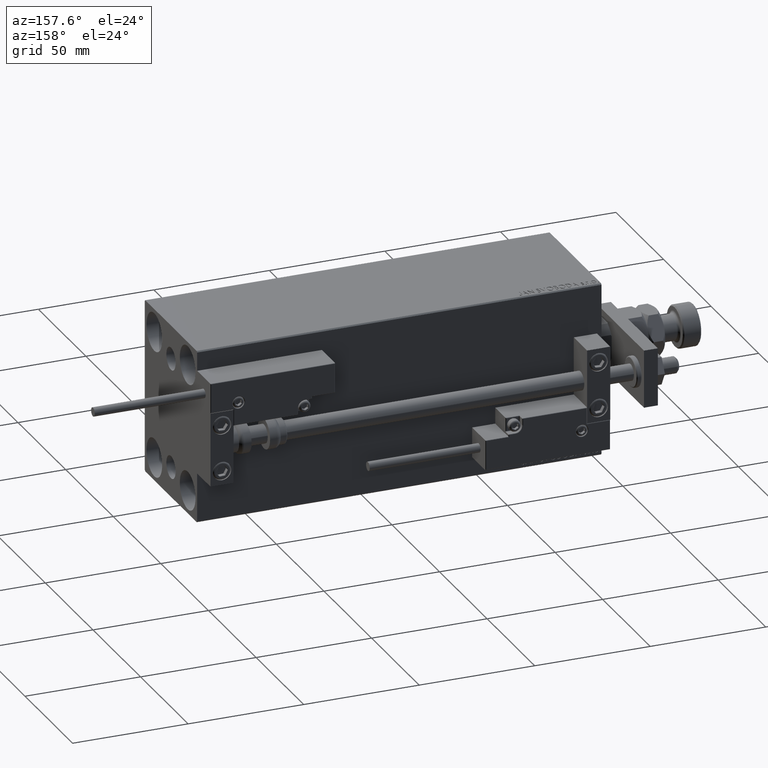
[diagram: clean part render]
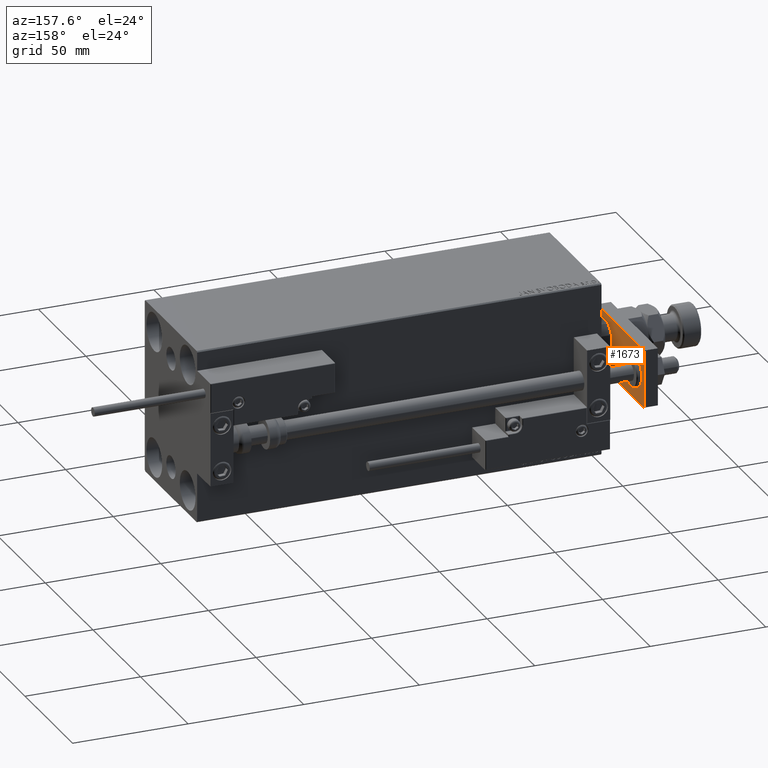
[diagram: same view with one face highlighted and labeled with its STEP entity id]
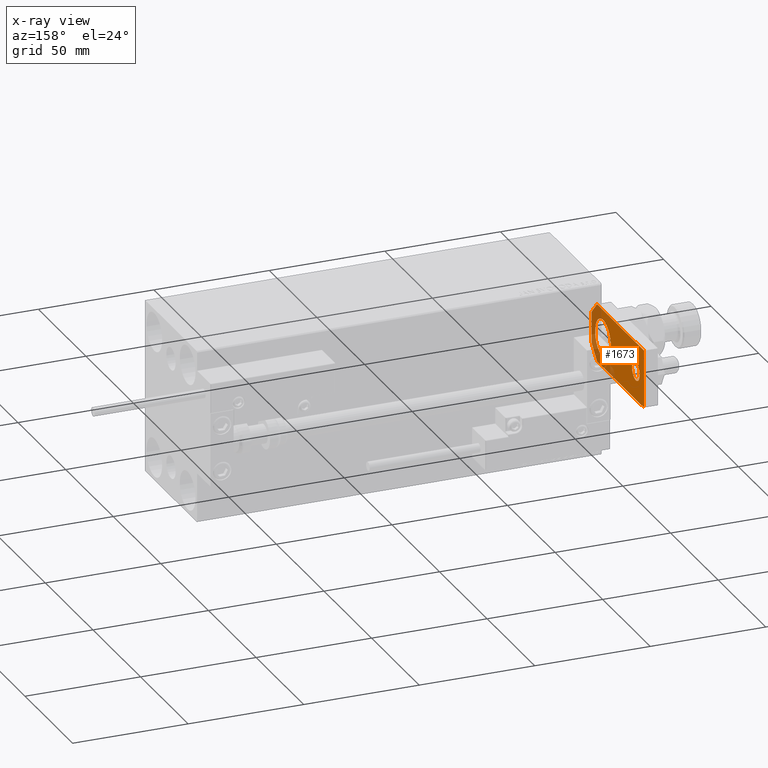
[diagram: x-ray of the same camera — body ghosted, the highlighted face saturated]
A machine part, auxiliary view. The second image highlights one B-rep face of the part: STEP entity #1673.
The next image is the same camera in x-ray: the body ghosted, the highlighted face saturated — about 20% of this face is hidden behind the body in this view.
In plain terms, the highlighted planar face has unit normal (-1, 0, 0).
Its self-contained STEP definition (entity closure, byte-faithful):
#44 = DIRECTION ( 'NONE',  ( 1.000000000000000000, 0.000000000000000000, 0.000000000000000000 ) ) ;
#57 = ORIENTED_EDGE ( 'NONE', *, *, #21189, .T. ) ;
#1673 = ADVANCED_FACE ( 'NONE', ( #33333, #21335, #6204 ), #5939, .F. ) ;
#1792 = VECTOR ( 'NONE', #21655, 1000.000000000000000 ) ;
#2223 = EDGE_CURVE ( 'NONE', #33489, #14913, #46762, .T. ) ;
#2452 = EDGE_CURVE ( 'NONE', #10854, #19344, #29493, .T. ) ;
#2599 = DIRECTION ( 'NONE',  ( 0.000000000000000000, 0.000000000000000000, 1.000000000000000000 ) ) ;
#2680 = VECTOR ( 'NONE', #9317, 1000.000000000000114 ) ;
#2702 = EDGE_CURVE ( 'NONE', #34551, #40366, #42606, .T. ) ;
#2821 = ORIENTED_EDGE ( 'NONE', *, *, #27479, .T. ) ;
#3822 = LINE ( 'NONE', #19966, #39175 ) ;
#5893 = VERTEX_POINT ( 'NONE', #51142 ) ;
#5910 = AXIS2_PLACEMENT_3D ( 'NONE', #13240, #34111, #17162 ) ;
#5939 = PLANE ( 'NONE',  #5910 ) ;
#6204 = FACE_BOUND ( 'NONE', #18721, .T. ) ;
#6507 = EDGE_LOOP ( 'NONE', ( #17176, #57, #30698, #45367, #15039, #2821 ) ) ;
#7555 = CIRCLE ( 'NONE', #33372, 4.000000000000000888 ) ;
#8378 = CARTESIAN_POINT ( 'NONE',  ( -12.50000000000000355, 4.814824860968089633E-32, 0.000000000000000000 ) ) ;
#8600 = CARTESIAN_POINT ( 'NONE',  ( 12.50000000000000000, 55.00000000000000000, 0.000000000000000000 ) ) ;
#9317 = DIRECTION ( 'NONE',  ( -0.7071067811865483499, -0.7071067811865465735, -0.000000000000000000 ) ) ;
#10854 = VERTEX_POINT ( 'NONE', #17506 ) ;
#11117 = CARTESIAN_POINT ( 'NONE',  ( -4.000000000000000888, 46.50000000000000000, 0.000000000000000000 ) ) ;
#13240 = CARTESIAN_POINT ( 'NONE',  ( 0.000000000000000000, 0.000000000000000000, 0.000000000000000000 ) ) ;
#13576 = CARTESIAN_POINT ( 'NONE',  ( 12.50000000000000355, 4.814824860968089633E-32, 0.000000000000000000 ) ) ;
#14024 = EDGE_CURVE ( 'NONE', #14913, #33489, #36488, .T. ) ;
#14086 = VECTOR ( 'NONE', #18487, 1000.000000000000000 ) ;
#14350 = EDGE_LOOP ( 'NONE', ( #40869, #42861 ) ) ;
#14525 = DIRECTION ( 'NONE',  ( 1.000000000000000000, 0.000000000000000000, 0.000000000000000000 ) ) ;
#14775 = DIRECTION ( 'NONE',  ( 0.000000000000000000, 0.000000000000000000, 1.000000000000000000 ) ) ;
#14913 = VERTEX_POINT ( 'NONE', #15475 ) ;
#15039 = ORIENTED_EDGE ( 'NONE', *, *, #2452, .F. ) ;
#15475 = CARTESIAN_POINT ( 'NONE',  ( -8.250000000000000000, 11.99999999999999645, 0.000000000000000000 ) ) ;
#15763 = VECTOR ( 'NONE', #22096, 1000.000000000000000 ) ;
#17162 = DIRECTION ( 'NONE',  ( 1.000000000000000000, 0.000000000000000000, 0.000000000000000000 ) ) ;
#17176 = ORIENTED_EDGE ( 'NONE', *, *, #24178, .F. ) ;
#17419 = CARTESIAN_POINT ( 'NONE',  ( -1.432611055310774642E-16, 46.50000000000000000, 0.000000000000000000 ) ) ;
#17506 = CARTESIAN_POINT ( 'NONE',  ( 12.50000000000000355, 5.659999999999991260, 0.000000000000000000 ) ) ;
#18487 = DIRECTION ( 'NONE',  ( -1.000000000000000000, 0.000000000000000000, 0.000000000000000000 ) ) ;
#18721 = EDGE_LOOP ( 'NONE', ( #45075, #35843 ) ) ;
#19071 = EDGE_CURVE ( 'NONE', #19344, #30706, #28424, .T. ) ;
#19344 = VERTEX_POINT ( 'NONE', #22258 ) ;
#19966 = CARTESIAN_POINT ( 'NONE',  ( -12.49999999999999822, 55.00000000000000000, 0.000000000000000000 ) ) ;
#21189 = EDGE_CURVE ( 'NONE', #5893, #47903, #34344, .T. ) ;
#21335 = FACE_BOUND ( 'NONE', #14350, .T. ) ;
#21655 = DIRECTION ( 'NONE',  ( -6.308085367188389994E-17, 1.000000000000000000, 0.000000000000000000 ) ) ;
#22088 = LINE ( 'NONE', #38018, #2680 ) ;
#22096 = DIRECTION ( 'NONE',  ( -0.7071067811865467956, 0.7071067811865483499, -0.000000000000000000 ) ) ;
#22258 = CARTESIAN_POINT ( 'NONE',  ( 12.50000000000000000, 55.00000000000000000, 0.000000000000000000 ) ) ;
#24030 = LINE ( 'NONE', #8378, #35023 ) ;
#24178 = EDGE_CURVE ( 'NONE', #5893, #45286, #24030, .T. ) ;
#27479 = EDGE_CURVE ( 'NONE', #10854, #45286, #22088, .T. ) ;
#27486 = CARTESIAN_POINT ( 'NONE',  ( -9.629649721936179265E-32, 11.99999999999999645, 0.000000000000000000 ) ) ;
#28424 = LINE ( 'NONE', #8600, #14086 ) ;
#29223 = DIRECTION ( 'NONE',  ( 0.000000000000000000, 0.000000000000000000, 1.000000000000000000 ) ) ;
#29493 = LINE ( 'NONE', #13576, #1792 ) ;
#30269 = CARTESIAN_POINT ( 'NONE',  ( -12.49999999999999822, 55.00000000000000000, 0.000000000000000000 ) ) ;
#30698 = ORIENTED_EDGE ( 'NONE', *, *, #40345, .F. ) ;
#30706 = VERTEX_POINT ( 'NONE', #30269 ) ;
#33333 = FACE_OUTER_BOUND ( 'NONE', #6507, .T. ) ;
#33372 = AXIS2_PLACEMENT_3D ( 'NONE', #36073, #14775, #14525 ) ;
#33489 = VERTEX_POINT ( 'NONE', #47478 ) ;
#33654 = CARTESIAN_POINT ( 'NONE',  ( -9.629649721936179265E-32, 11.99999999999999645, 0.000000000000000000 ) ) ;
#34111 = DIRECTION ( 'NONE',  ( -0.000000000000000000, 0.000000000000000000, 1.000000000000000000 ) ) ;
#34344 = LINE ( 'NONE', #41935, #15763 ) ;
#34551 = VERTEX_POINT ( 'NONE', #49402 ) ;
#35023 = VECTOR ( 'NONE', #44, 1000.000000000000000 ) ;
#35843 = ORIENTED_EDGE ( 'NONE', *, *, #2223, .T. ) ;
#36073 = CARTESIAN_POINT ( 'NONE',  ( -1.432611055310774642E-16, 46.50000000000000000, 0.000000000000000000 ) ) ;
#36488 = CIRCLE ( 'NONE', #45681, 8.250000000000000000 ) ;
#37891 = CARTESIAN_POINT ( 'NONE',  ( 6.839999999999998970, 4.814824860968089633E-32, 0.000000000000000000 ) ) ;
#38018 = CARTESIAN_POINT ( 'NONE',  ( 12.50000000000000355, 5.659999999999991260, 0.000000000000000000 ) ) ;
#39175 = VECTOR ( 'NONE', #43980, 1000.000000000000000 ) ;
#40345 = EDGE_CURVE ( 'NONE', #30706, #47903, #3822, .T. ) ;
#40366 = VERTEX_POINT ( 'NONE', #11117 ) ;
#40869 = ORIENTED_EDGE ( 'NONE', *, *, #42102, .T. ) ;
#41935 = CARTESIAN_POINT ( 'NONE',  ( -6.840000000000012292, 4.814824860968089633E-32, 0.000000000000000000 ) ) ;
#42102 = EDGE_CURVE ( 'NONE', #40366, #34551, #7555, .T. ) ;
#42606 = CIRCLE ( 'NONE', #45958, 4.000000000000000888 ) ;
#42861 = ORIENTED_EDGE ( 'NONE', *, *, #2702, .T. ) ;
#43980 = DIRECTION ( 'NONE',  ( -9.462128050782584375E-17, -1.000000000000000000, 0.000000000000000000 ) ) ;
#45075 = ORIENTED_EDGE ( 'NONE', *, *, #14024, .T. ) ;
#45091 = AXIS2_PLACEMENT_3D ( 'NONE', #27486, #29223, #47325 ) ;
#45286 = VERTEX_POINT ( 'NONE', #37891 ) ;
#45352 = DIRECTION ( 'NONE',  ( 0.000000000000000000, 0.000000000000000000, 1.000000000000000000 ) ) ;
#45367 = ORIENTED_EDGE ( 'NONE', *, *, #19071, .F. ) ;
#45681 = AXIS2_PLACEMENT_3D ( 'NONE', #33654, #2599, #49571 ) ;
#45958 = AXIS2_PLACEMENT_3D ( 'NONE', #17419, #45352, #49783 ) ;
#46762 = CIRCLE ( 'NONE', #45091, 8.250000000000000000 ) ;
#47325 = DIRECTION ( 'NONE',  ( 1.000000000000000000, 0.000000000000000000, 0.000000000000000000 ) ) ;
#47478 = CARTESIAN_POINT ( 'NONE',  ( 8.250000000000000000, 11.99999999999999822, 0.000000000000000000 ) ) ;
#47903 = VERTEX_POINT ( 'NONE', #51577 ) ;
#49402 = CARTESIAN_POINT ( 'NONE',  ( 4.000000000000000888, 46.50000000000000000, 0.000000000000000000 ) ) ;
#49571 = DIRECTION ( 'NONE',  ( 1.000000000000000000, 0.000000000000000000, 0.000000000000000000 ) ) ;
#49783 = DIRECTION ( 'NONE',  ( 1.000000000000000000, 0.000000000000000000, 0.000000000000000000 ) ) ;
#51142 = CARTESIAN_POINT ( 'NONE',  ( -6.840000000000012292, 4.814824860968089633E-32, 0.000000000000000000 ) ) ;
#51577 = CARTESIAN_POINT ( 'NONE',  ( -12.50000000000000355, 5.660000000000005471, 0.000000000000000000 ) ) ;